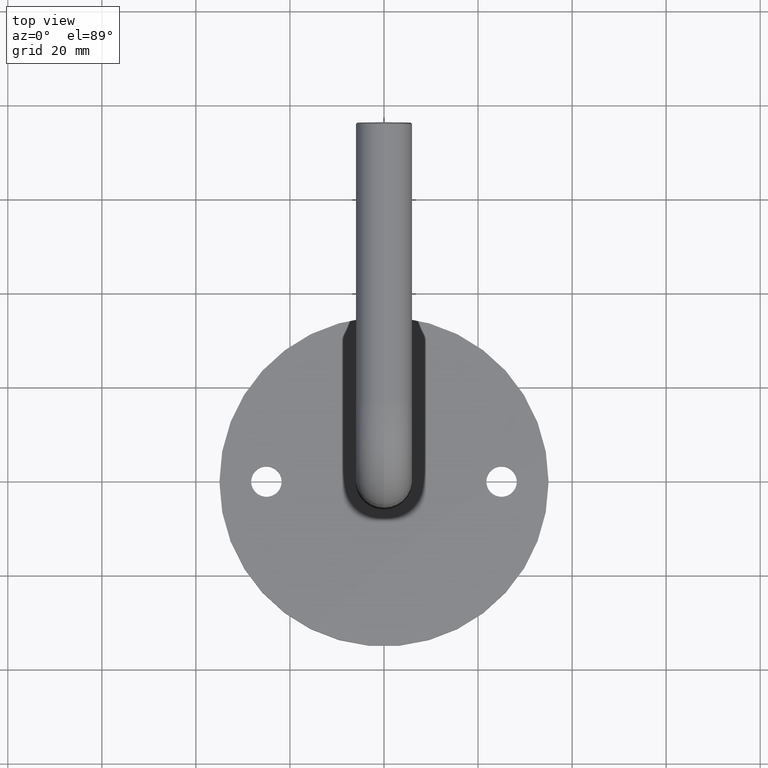
[diagram: clean part render]
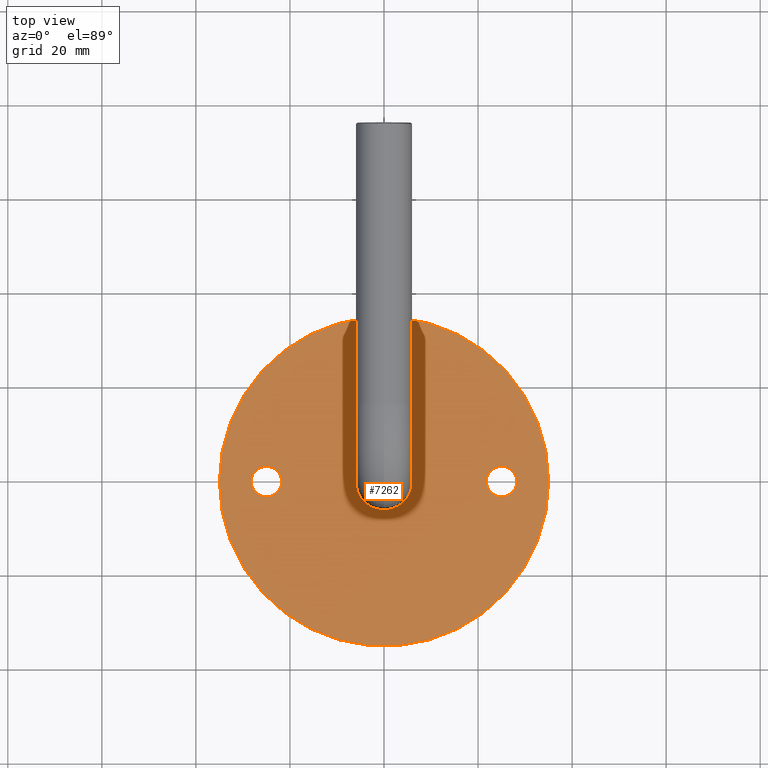
[diagram: same view with one face highlighted and labeled with its STEP entity id]
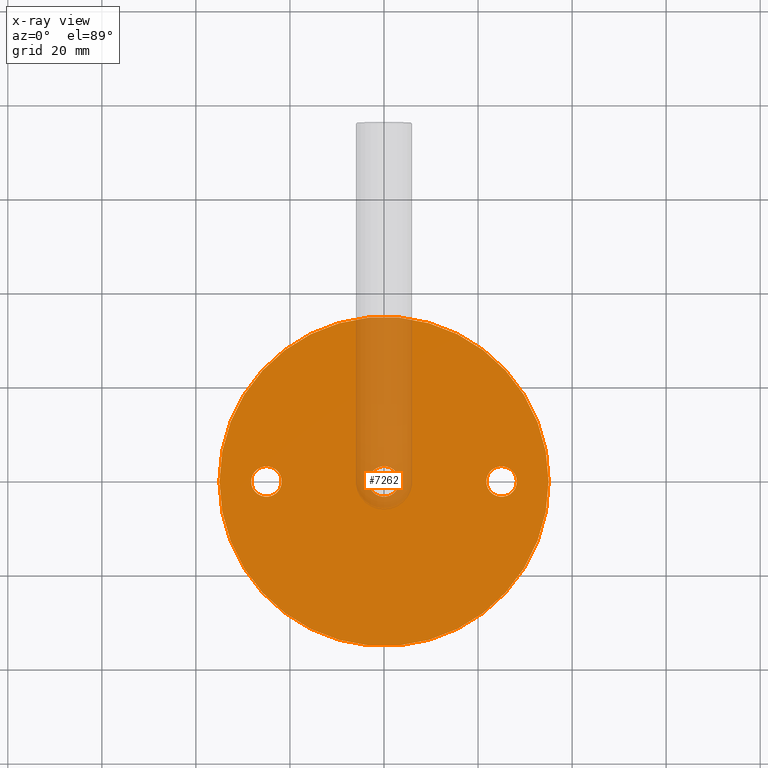
[diagram: x-ray of the same camera — body ghosted, the highlighted face saturated]
A machine part, top view. The second image highlights one B-rep face of the part: STEP entity #7262.
The next image is the same camera in x-ray: the body ghosted, the highlighted face saturated — about 12% of this face is hidden behind the body in this view.
In plain terms, the highlighted planar face has unit normal (0, 0, 1).
Its self-contained STEP definition (entity closure, byte-faithful):
#34 = CARTESIAN_POINT ( 'NONE',  ( 28.24999999999997513, 6.521244205459652950E-15, 4.000000000000000000 ) ) ;
#202 = AXIS2_PLACEMENT_3D ( 'NONE', #12019, #15612, #9314 ) ;
#219 = CIRCLE ( 'NONE', #202, 3.249999999999975131 ) ;
#361 = CIRCLE ( 'NONE', #12707, 3.249999999999975131 ) ;
#387 = DIRECTION ( 'NONE',  ( -1.000000000000000000, 0.000000000000000000, 0.000000000000000000 ) ) ;
#608 = DIRECTION ( 'NONE',  ( 0.000000000000000000, 0.000000000000000000, 1.000000000000000000 ) ) ;
#643 = CARTESIAN_POINT ( 'NONE',  ( -28.25000000000000355, 0.000000000000000000, 4.000000000000000000 ) ) ;
#831 = EDGE_LOOP ( 'NONE', ( #5923, #8747 ) ) ;
#882 = ORIENTED_EDGE ( 'NONE', *, *, #9114, .F. ) ;
#1018 = DIRECTION ( 'NONE',  ( -0.000000000000000000, -0.000000000000000000, -1.000000000000000000 ) ) ;
#1150 = VERTEX_POINT ( 'NONE', #13444 ) ;
#1559 = EDGE_CURVE ( 'NONE', #14636, #12679, #361, .T. ) ;
#1774 = DIRECTION ( 'NONE',  ( 1.000000000000000000, 0.000000000000000000, 0.000000000000000000 ) ) ;
#2137 = ORIENTED_EDGE ( 'NONE', *, *, #1559, .F. ) ;
#2403 = AXIS2_PLACEMENT_3D ( 'NONE', #14214, #10662, #15623 ) ;
#3207 = EDGE_CURVE ( 'NONE', #12414, #9604, #5701, .T. ) ;
#3434 = CARTESIAN_POINT ( 'NONE',  ( -25.00000000000000000, 0.000000000000000000, 4.000000000000000000 ) ) ;
#4113 = CIRCLE ( 'NONE', #2403, 35.00000000000000711 ) ;
#4939 = EDGE_CURVE ( 'NONE', #7457, #7436, #4113, .T. ) ;
#5067 = ORIENTED_EDGE ( 'NONE', *, *, #13215, .T. ) ;
#5217 = CIRCLE ( 'NONE', #7258, 3.250000000000002665 ) ;
#5400 = CARTESIAN_POINT ( 'NONE',  ( 3.250000000000000444, 5.817072295949928412E-16, 3.999999999999996447 ) ) ;
#5701 = CIRCLE ( 'NONE', #6164, 3.250000000000002665 ) ;
#5923 = ORIENTED_EDGE ( 'NONE', *, *, #4939, .T. ) ;
#6162 = DIRECTION ( 'NONE',  ( -1.000000000000000000, 0.000000000000000000, 0.000000000000000000 ) ) ;
#6164 = AXIS2_PLACEMENT_3D ( 'NONE', #3434, #10817, #12182 ) ;
#6720 = CARTESIAN_POINT ( 'NONE',  ( -25.00000000000000000, 0.000000000000000000, 4.000000000000000000 ) ) ;
#6943 = AXIS2_PLACEMENT_3D ( 'NONE', #10743, #608, #15599 ) ;
#7011 = DIRECTION ( 'NONE',  ( 1.000000000000000000, 0.000000000000000000, -0.000000000000000000 ) ) ;
#7221 = CARTESIAN_POINT ( 'NONE',  ( 0.000000000000000000, 0.000000000000000000, 3.999999999999996447 ) ) ;
#7222 = FACE_BOUND ( 'NONE', #7841, .T. ) ;
#7258 = AXIS2_PLACEMENT_3D ( 'NONE', #6720, #15489, #1774 ) ;
#7262 = ADVANCED_FACE ( 'NONE', ( #15460, #7222, #11758, #10976 ), #12038, .T. ) ;
#7399 = CARTESIAN_POINT ( 'NONE',  ( -35.00000000000000711, 0.000000000000000000, 4.000000000000000000 ) ) ;
#7436 = VERTEX_POINT ( 'NONE', #14919 ) ;
#7457 = VERTEX_POINT ( 'NONE', #7399 ) ;
#7841 = EDGE_LOOP ( 'NONE', ( #15674, #14115 ) ) ;
#8096 = CARTESIAN_POINT ( 'NONE',  ( 0.000000000000000000, 0.000000000000000000, 3.999999999999996447 ) ) ;
#8288 = DIRECTION ( 'NONE',  ( 0.000000000000000000, 0.000000000000000000, 1.000000000000000000 ) ) ;
#8629 = EDGE_LOOP ( 'NONE', ( #882, #2137 ) ) ;
#8747 = ORIENTED_EDGE ( 'NONE', *, *, #14048, .T. ) ;
#9114 = EDGE_CURVE ( 'NONE', #12679, #14636, #219, .T. ) ;
#9182 = CIRCLE ( 'NONE', #10427, 3.250000000000000444 ) ;
#9314 = DIRECTION ( 'NONE',  ( 1.000000000000000000, 0.000000000000000000, 0.000000000000000000 ) ) ;
#9604 = VERTEX_POINT ( 'NONE', #643 ) ;
#9949 = ORIENTED_EDGE ( 'NONE', *, *, #16163, .T. ) ;
#10427 = AXIS2_PLACEMENT_3D ( 'NONE', #8096, #14238, #387 ) ;
#10662 = DIRECTION ( 'NONE',  ( 0.000000000000000000, 0.000000000000000000, 1.000000000000000000 ) ) ;
#10743 = CARTESIAN_POINT ( 'NONE',  ( 0.000000000000000000, 0.000000000000000000, 4.000000000000000000 ) ) ;
#10817 = DIRECTION ( 'NONE',  ( 0.000000000000000000, 0.000000000000000000, 1.000000000000000000 ) ) ;
#10976 = FACE_BOUND ( 'NONE', #8629, .T. ) ;
#11217 = VERTEX_POINT ( 'NONE', #5400 ) ;
#11328 = CARTESIAN_POINT ( 'NONE',  ( 25.00000000000000000, 6.123233995736766085E-15, 4.000000000000000000 ) ) ;
#11605 = AXIS2_PLACEMENT_3D ( 'NONE', #7221, #1018, #6162 ) ;
#11758 = FACE_OUTER_BOUND ( 'NONE', #831, .T. ) ;
#12019 = CARTESIAN_POINT ( 'NONE',  ( 25.00000000000000000, 6.123233995736766085E-15, 4.000000000000000000 ) ) ;
#12031 = CARTESIAN_POINT ( 'NONE',  ( -21.75000000000000000, 3.980102097228905134E-16, 4.000000000000000000 ) ) ;
#12038 = PLANE ( 'NONE',  #15767 ) ;
#12126 = CIRCLE ( 'NONE', #6943, 35.00000000000000711 ) ;
#12182 = DIRECTION ( 'NONE',  ( 1.000000000000000000, 0.000000000000000000, 0.000000000000000000 ) ) ;
#12414 = VERTEX_POINT ( 'NONE', #12031 ) ;
#12679 = VERTEX_POINT ( 'NONE', #15335 ) ;
#12707 = AXIS2_PLACEMENT_3D ( 'NONE', #11328, #15194, #15091 ) ;
#13116 = EDGE_LOOP ( 'NONE', ( #5067, #9949 ) ) ;
#13215 = EDGE_CURVE ( 'NONE', #1150, #11217, #9182, .T. ) ;
#13355 = CARTESIAN_POINT ( 'NONE',  ( 0.000000000000000000, 0.000000000000000000, 4.000000000000000000 ) ) ;
#13444 = CARTESIAN_POINT ( 'NONE',  ( -3.250000000000000444, 0.000000000000000000, 3.999999999999996447 ) ) ;
#13471 = CIRCLE ( 'NONE', #11605, 3.250000000000000444 ) ;
#14042 = EDGE_CURVE ( 'NONE', #9604, #12414, #5217, .T. ) ;
#14048 = EDGE_CURVE ( 'NONE', #7436, #7457, #12126, .T. ) ;
#14115 = ORIENTED_EDGE ( 'NONE', *, *, #3207, .F. ) ;
#14214 = CARTESIAN_POINT ( 'NONE',  ( 0.000000000000000000, 0.000000000000000000, 4.000000000000000000 ) ) ;
#14238 = DIRECTION ( 'NONE',  ( -0.000000000000000000, -0.000000000000000000, -1.000000000000000000 ) ) ;
#14636 = VERTEX_POINT ( 'NONE', #34 ) ;
#14919 = CARTESIAN_POINT ( 'NONE',  ( 35.00000000000000711, 4.286263797015737285E-15, 4.000000000000000000 ) ) ;
#15091 = DIRECTION ( 'NONE',  ( 1.000000000000000000, 0.000000000000000000, 0.000000000000000000 ) ) ;
#15194 = DIRECTION ( 'NONE',  ( 0.000000000000000000, 0.000000000000000000, 1.000000000000000000 ) ) ;
#15335 = CARTESIAN_POINT ( 'NONE',  ( 21.75000000000002487, 6.123233995736766085E-15, 4.000000000000000000 ) ) ;
#15460 = FACE_BOUND ( 'NONE', #13116, .T. ) ;
#15489 = DIRECTION ( 'NONE',  ( 0.000000000000000000, 0.000000000000000000, 1.000000000000000000 ) ) ;
#15599 = DIRECTION ( 'NONE',  ( 1.000000000000000000, 0.000000000000000000, 0.000000000000000000 ) ) ;
#15612 = DIRECTION ( 'NONE',  ( 0.000000000000000000, 0.000000000000000000, 1.000000000000000000 ) ) ;
#15623 = DIRECTION ( 'NONE',  ( 1.000000000000000000, 0.000000000000000000, 0.000000000000000000 ) ) ;
#15674 = ORIENTED_EDGE ( 'NONE', *, *, #14042, .F. ) ;
#15767 = AXIS2_PLACEMENT_3D ( 'NONE', #13355, #8288, #7011 ) ;
#16163 = EDGE_CURVE ( 'NONE', #11217, #1150, #13471, .T. ) ;